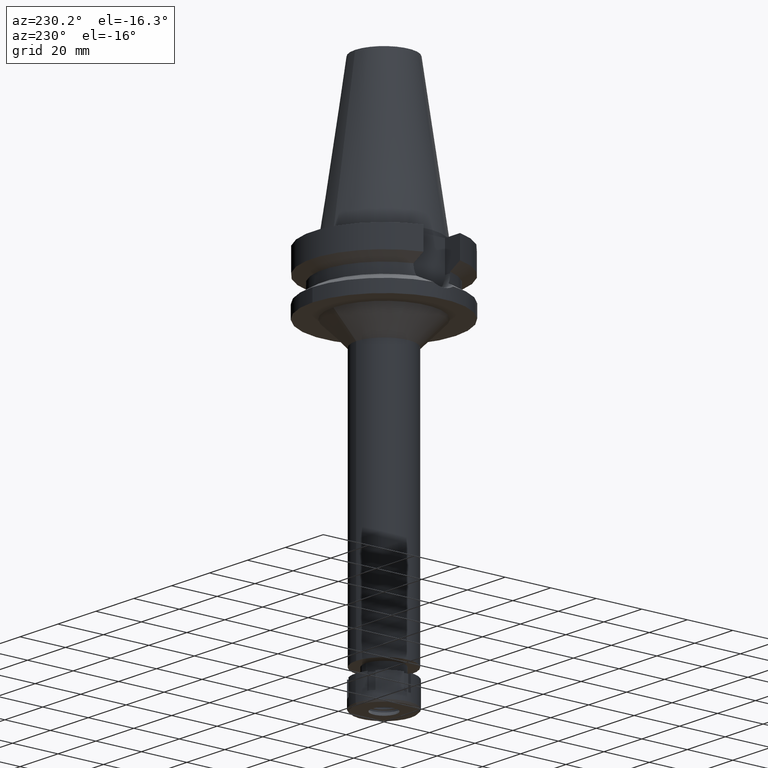
[diagram: clean part render]
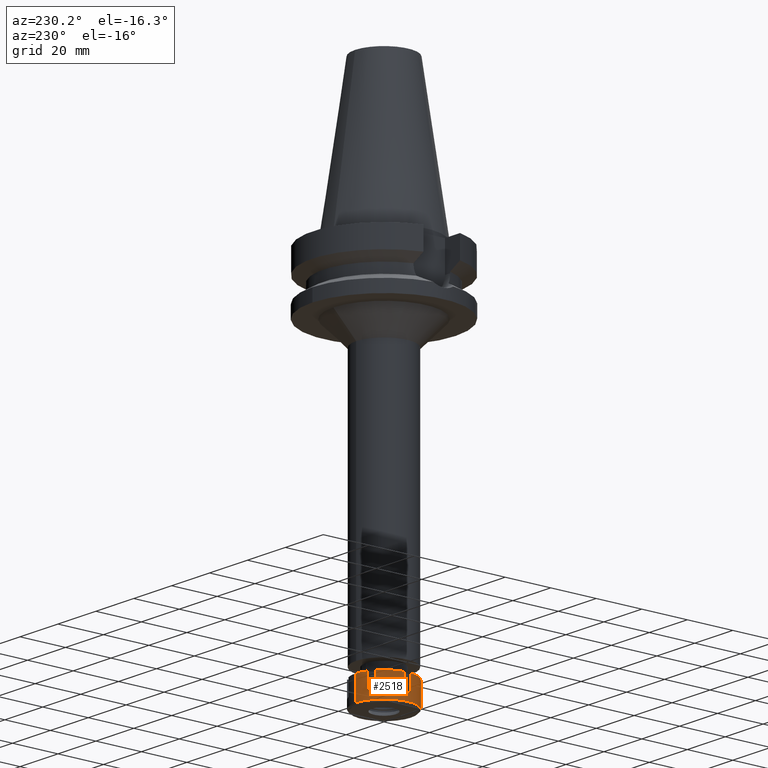
[diagram: same view with one face highlighted and labeled with its STEP entity id]
A machine part, auxiliary view. The second image highlights one B-rep face of the part: STEP entity #2518.
In plain terms, the highlighted cylindrical surface (partial cylindrical patch) has radius 12.5 mm, axis along (0, 0, -1).
Its self-contained STEP definition (entity closure, byte-faithful):
#23 = CARTESIAN_POINT ( 'NONE',  ( -12.40967364599000078, -1.500000000000000000, -7.000000000000000000 ) ) ;
#30 = VECTOR ( 'NONE', #1819, 1000.000000000000000 ) ;
#34 = FACE_OUTER_BOUND ( 'NONE', #3370, .T. ) ;
#39 = LINE ( 'NONE', #23, #516 ) ;
#66 = EDGE_CURVE ( 'NONE', #1135, #3204, #2758, .T. ) ;
#86 = DIRECTION ( 'NONE',  ( 0.0000000000000000000, -1.000000000000000000, 0.0000000000000000000 ) ) ;
#89 = CARTESIAN_POINT ( 'NONE',  ( 0.0000000000000000000, 12.50000000000000000, 0.0000000000000000000 ) ) ;
#97 = CIRCLE ( 'NONE', #3350, 12.50000000000000355 ) ;
#155 = AXIS2_PLACEMENT_3D ( 'NONE', #310, #2187, #2825 ) ;
#171 = EDGE_CURVE ( 'NONE', #2708, #272, #2819, .T. ) ;
#230 = VECTOR ( 'NONE', #3121, 1000.000000000000000 ) ;
#271 = ORIENTED_EDGE ( 'NONE', *, *, #3542, .F. ) ;
#272 = VERTEX_POINT ( 'NONE', #828 ) ;
#310 = CARTESIAN_POINT ( 'NONE',  ( 0.0000000000000000000, 0.0000000000000000000, -7.000000000000000000 ) ) ;
#313 = DIRECTION ( 'NONE',  ( 0.0000000000000000000, 0.0000000000000000000, -1.000000000000000000 ) ) ;
#511 = VECTOR ( 'NONE', #2537, 1000.000000000000000 ) ;
#513 = CARTESIAN_POINT ( 'NONE',  ( 0.0000000000000000000, 12.50000000000000000, -10.30000000000000071 ) ) ;
#516 = VECTOR ( 'NONE', #1152, 1000.000000000000000 ) ;
#527 = DIRECTION ( 'NONE',  ( 0.0000000000000000000, 0.0000000000000000000, -1.000000000000000000 ) ) ;
#550 = EDGE_CURVE ( 'NONE', #2850, #3247, #2367, .T. ) ;
#562 = CARTESIAN_POINT ( 'NONE',  ( 0.0000000000000000000, 0.0000000000000000000, 0.0000000000000000000 ) ) ;
#572 = LINE ( 'NONE', #2307, #2770 ) ;
#591 = CARTESIAN_POINT ( 'NONE',  ( -7.503874928671999456, -9.997092630101999333, 0.0000000000000000000 ) ) ;
#720 = VERTEX_POINT ( 'NONE', #3030 ) ;
#761 = CARTESIAN_POINT ( 'NONE',  ( 0.0000000000000000000, 0.0000000000000000000, 0.0000000000000000000 ) ) ;
#822 = VERTEX_POINT ( 'NONE', #2296 ) ;
#828 = CARTESIAN_POINT ( 'NONE',  ( -4.905798717319999724, -11.49709263010000093, 0.0000000000000000000 ) ) ;
#843 = EDGE_CURVE ( 'NONE', #3143, #2850, #97, .T. ) ;
#861 = ORIENTED_EDGE ( 'NONE', *, *, #2219, .T. ) ;
#885 = ORIENTED_EDGE ( 'NONE', *, *, #66, .T. ) ;
#887 = EDGE_CURVE ( 'NONE', #1853, #272, #1684, .T. ) ;
#895 = ORIENTED_EDGE ( 'NONE', *, *, #2907, .F. ) ;
#898 = DIRECTION ( 'NONE',  ( 0.0000000000000000000, 0.0000000000000000000, -1.000000000000000000 ) ) ;
#927 = EDGE_CURVE ( 'NONE', #1853, #1821, #2283, .T. ) ;
#942 = DIRECTION ( 'NONE',  ( 0.0000000000000000000, 0.0000000000000000000, -1.000000000000000000 ) ) ;
#956 = VERTEX_POINT ( 'NONE', #979 ) ;
#979 = CARTESIAN_POINT ( 'NONE',  ( -12.40967364599000078, 1.500000000000000000, 0.0000000000000000000 ) ) ;
#987 = DIRECTION ( 'NONE',  ( 0.0000000000000000000, 1.000000000000000000, 0.0000000000000000000 ) ) ;
#1018 = CARTESIAN_POINT ( 'NONE',  ( -7.503874928671999456, 9.997092630101999333, 0.0000000000000000000 ) ) ;
#1087 = CARTESIAN_POINT ( 'NONE',  ( -4.905798717318000435, 11.49709263010000093, -7.000000000000000000 ) ) ;
#1089 = LINE ( 'NONE', #591, #1398 ) ;
#1111 = AXIS2_PLACEMENT_3D ( 'NONE', #2564, #3125, #86 ) ;
#1135 = VERTEX_POINT ( 'NONE', #2450 ) ;
#1152 = DIRECTION ( 'NONE',  ( 0.0000000000000000000, 0.0000000000000000000, 1.000000000000000000 ) ) ;
#1190 = ORIENTED_EDGE ( 'NONE', *, *, #2030, .T. ) ;
#1285 = ORIENTED_EDGE ( 'NONE', *, *, #1906, .T. ) ;
#1310 = VERTEX_POINT ( 'NONE', #2291 ) ;
#1316 = LINE ( 'NONE', #2443, #1994 ) ;
#1348 = CARTESIAN_POINT ( 'NONE',  ( 0.0000000000000000000, 12.50000000000000000, 0.0000000000000000000 ) ) ;
#1385 = ORIENTED_EDGE ( 'NONE', *, *, #927, .T. ) ;
#1398 = VECTOR ( 'NONE', #313, 1000.000000000000000 ) ;
#1441 = EDGE_CURVE ( 'NONE', #822, #1821, #1089, .T. ) ;
#1464 = DIRECTION ( 'NONE',  ( -0.3924638973854109314, 0.9197674104082257385, 0.0000000000000000000 ) ) ;
#1469 = DIRECTION ( 'NONE',  ( -0.6003099942937818456, -0.7997674104081758939, 0.0000000000000000000 ) ) ;
#1499 = AXIS2_PLACEMENT_3D ( 'NONE', #761, #1908, #3317 ) ;
#1509 = CARTESIAN_POINT ( 'NONE',  ( -4.905798717318000435, 11.49709263010000093, 0.0000000000000000000 ) ) ;
#1645 = CARTESIAN_POINT ( 'NONE',  ( 0.0000000000000000000, -12.50000000000000000, -10.30000000000000071 ) ) ;
#1661 = ORIENTED_EDGE ( 'NONE', *, *, #1441, .F. ) ;
#1668 = CARTESIAN_POINT ( 'NONE',  ( 0.0000000000000000000, 0.0000000000000000000, -7.000000000000000000 ) ) ;
#1670 = DIRECTION ( 'NONE',  ( 0.0000000000000000000, -1.000000000000000000, 0.0000000000000000000 ) ) ;
#1684 = LINE ( 'NONE', #2811, #511 ) ;
#1726 = EDGE_CURVE ( 'NONE', #1135, #3164, #1316, .T. ) ;
#1758 = AXIS2_PLACEMENT_3D ( 'NONE', #1855, #3514, #987 ) ;
#1819 = DIRECTION ( 'NONE',  ( 0.0000000000000000000, 0.0000000000000000000, -1.000000000000000000 ) ) ;
#1821 = VERTEX_POINT ( 'NONE', #3384 ) ;
#1853 = VERTEX_POINT ( 'NONE', #2540 ) ;
#1855 = CARTESIAN_POINT ( 'NONE',  ( 0.0000000000000000000, 0.0000000000000000000, -10.30000000000000071 ) ) ;
#1888 = EDGE_CURVE ( 'NONE', #1310, #2945, #39, .T. ) ;
#1906 = EDGE_CURVE ( 'NONE', #822, #2945, #2702, .T. ) ;
#1908 = DIRECTION ( 'NONE',  ( 0.0000000000000000000, 0.0000000000000000000, -1.000000000000000000 ) ) ;
#1994 = VECTOR ( 'NONE', #3296, 1000.000000000000000 ) ;
#2027 = CARTESIAN_POINT ( 'NONE',  ( -12.40967364599000078, -1.500000000000000000, 0.0000000000000000000 ) ) ;
#2030 = EDGE_CURVE ( 'NONE', #3247, #2869, #2232, .T. ) ;
#2081 = ORIENTED_EDGE ( 'NONE', *, *, #887, .F. ) ;
#2187 = DIRECTION ( 'NONE',  ( 0.0000000000000000000, 0.0000000000000000000, -1.000000000000000000 ) ) ;
#2219 = EDGE_CURVE ( 'NONE', #1310, #720, #3285, .T. ) ;
#2231 = AXIS2_PLACEMENT_3D ( 'NONE', #3295, #2442, #1670 ) ;
#2232 = CIRCLE ( 'NONE', #1758, 12.50000000000000000 ) ;
#2280 = DIRECTION ( 'NONE',  ( 0.0000000000000000000, 0.0000000000000000000, -1.000000000000000000 ) ) ;
#2283 = CIRCLE ( 'NONE', #2399, 12.49999999999999822 ) ;
#2291 = CARTESIAN_POINT ( 'NONE',  ( -12.40967364599000078, -1.500000000000000000, -7.000000000000000000 ) ) ;
#2296 = CARTESIAN_POINT ( 'NONE',  ( -7.503874928671999456, -9.997092630101999333, 0.0000000000000000000 ) ) ;
#2301 = ORIENTED_EDGE ( 'NONE', *, *, #1888, .F. ) ;
#2307 = CARTESIAN_POINT ( 'NONE',  ( 0.0000000000000000000, -12.50000000000000000, 0.0000000000000000000 ) ) ;
#2367 = LINE ( 'NONE', #89, #30 ) ;
#2399 = AXIS2_PLACEMENT_3D ( 'NONE', #2831, #942, #3172 ) ;
#2441 = VECTOR ( 'NONE', #3308, 1000.000000000000000 ) ;
#2442 = DIRECTION ( 'NONE',  ( 0.0000000000000000000, 0.0000000000000000000, -1.000000000000000000 ) ) ;
#2443 = CARTESIAN_POINT ( 'NONE',  ( -7.503874928671999456, 9.997092630101999333, -7.000000000000000000 ) ) ;
#2450 = CARTESIAN_POINT ( 'NONE',  ( -7.503874928671999456, 9.997092630101999333, -7.000000000000000000 ) ) ;
#2460 = AXIS2_PLACEMENT_3D ( 'NONE', #562, #2280, #1469 ) ;
#2480 = DIRECTION ( 'NONE',  ( -0.9927738916792689938, -0.1199999999999962208, 0.0000000000000000000 ) ) ;
#2501 = CIRCLE ( 'NONE', #1499, 12.50000000000000000 ) ;
#2517 = LINE ( 'NONE', #2812, #2441 ) ;
#2518 = ADVANCED_FACE ( 'NONE', ( #34 ), #2844, .T. ) ;
#2537 = DIRECTION ( 'NONE',  ( 0.0000000000000000000, 0.0000000000000000000, 1.000000000000000000 ) ) ;
#2540 = CARTESIAN_POINT ( 'NONE',  ( -4.905798717319999724, -11.49709263010000093, -7.000000000000000000 ) ) ;
#2541 = ORIENTED_EDGE ( 'NONE', *, *, #2964, .F. ) ;
#2552 = CARTESIAN_POINT ( 'NONE',  ( 0.0000000000000000000, 0.0000000000000000000, 0.0000000000000000000 ) ) ;
#2564 = CARTESIAN_POINT ( 'NONE',  ( 0.0000000000000000000, 0.0000000000000000000, 0.0000000000000000000 ) ) ;
#2607 = CARTESIAN_POINT ( 'NONE',  ( -4.905798717318000435, 11.49709263010000093, 0.0000000000000000000 ) ) ;
#2641 = CARTESIAN_POINT ( 'NONE',  ( 0.0000000000000000000, -12.50000000000000000, 0.0000000000000000000 ) ) ;
#2653 = ORIENTED_EDGE ( 'NONE', *, *, #843, .T. ) ;
#2702 = CIRCLE ( 'NONE', #2460, 12.50000000000000178 ) ;
#2704 = ORIENTED_EDGE ( 'NONE', *, *, #550, .T. ) ;
#2708 = VERTEX_POINT ( 'NONE', #2641 ) ;
#2758 = CIRCLE ( 'NONE', #155, 12.50000000000000178 ) ;
#2770 = VECTOR ( 'NONE', #898, 1000.000000000000000 ) ;
#2811 = CARTESIAN_POINT ( 'NONE',  ( -4.905798717319999724, -11.49709263010000093, -7.000000000000000000 ) ) ;
#2812 = CARTESIAN_POINT ( 'NONE',  ( -12.40967364599000078, 1.500000000000000000, 0.0000000000000000000 ) ) ;
#2819 = CIRCLE ( 'NONE', #2231, 12.50000000000000000 ) ;
#2823 = ORIENTED_EDGE ( 'NONE', *, *, #171, .T. ) ;
#2825 = DIRECTION ( 'NONE',  ( -0.6003099942937818456, 0.7997674104081758939, 0.0000000000000000000 ) ) ;
#2831 = CARTESIAN_POINT ( 'NONE',  ( 0.0000000000000000000, 0.0000000000000000000, -7.000000000000000000 ) ) ;
#2844 = CYLINDRICAL_SURFACE ( 'NONE', #1111, 12.50000000000000000 ) ;
#2850 = VERTEX_POINT ( 'NONE', #1348 ) ;
#2869 = VERTEX_POINT ( 'NONE', #1645 ) ;
#2890 = ORIENTED_EDGE ( 'NONE', *, *, #3409, .T. ) ;
#2907 = EDGE_CURVE ( 'NONE', #2708, #2869, #572, .T. ) ;
#2945 = VERTEX_POINT ( 'NONE', #2027 ) ;
#2964 = EDGE_CURVE ( 'NONE', #3143, #3204, #3170, .T. ) ;
#3030 = CARTESIAN_POINT ( 'NONE',  ( -12.40967364599000078, 1.500000000000000000, -7.000000000000000000 ) ) ;
#3121 = DIRECTION ( 'NONE',  ( 0.0000000000000000000, 0.0000000000000000000, -1.000000000000000000 ) ) ;
#3125 = DIRECTION ( 'NONE',  ( 0.0000000000000000000, 0.0000000000000000000, -1.000000000000000000 ) ) ;
#3136 = DIRECTION ( 'NONE',  ( 0.0000000000000000000, 0.0000000000000000000, -1.000000000000000000 ) ) ;
#3143 = VERTEX_POINT ( 'NONE', #1509 ) ;
#3164 = VERTEX_POINT ( 'NONE', #1018 ) ;
#3170 = LINE ( 'NONE', #2607, #230 ) ;
#3172 = DIRECTION ( 'NONE',  ( -0.3924638973856165447, -0.9197674104081380309, 0.0000000000000000000 ) ) ;
#3204 = VERTEX_POINT ( 'NONE', #1087 ) ;
#3247 = VERTEX_POINT ( 'NONE', #513 ) ;
#3285 = CIRCLE ( 'NONE', #3640, 12.50000000000000000 ) ;
#3295 = CARTESIAN_POINT ( 'NONE',  ( 0.0000000000000000000, 0.0000000000000000000, 0.0000000000000000000 ) ) ;
#3296 = DIRECTION ( 'NONE',  ( 0.0000000000000000000, 0.0000000000000000000, 1.000000000000000000 ) ) ;
#3306 = ORIENTED_EDGE ( 'NONE', *, *, #1726, .F. ) ;
#3308 = DIRECTION ( 'NONE',  ( 0.0000000000000000000, 0.0000000000000000000, -1.000000000000000000 ) ) ;
#3317 = DIRECTION ( 'NONE',  ( -0.9927738916792689938, 0.1199999999999962208, 0.0000000000000000000 ) ) ;
#3350 = AXIS2_PLACEMENT_3D ( 'NONE', #2552, #3136, #1464 ) ;
#3370 = EDGE_LOOP ( 'NONE', ( #2541, #2653, #2704, #1190, #895, #2823, #2081, #1385, #1661, #1285, #2301, #861, #271, #2890, #3306, #885 ) ) ;
#3384 = CARTESIAN_POINT ( 'NONE',  ( -7.503874928671999456, -9.997092630101999333, -7.000000000000000000 ) ) ;
#3409 = EDGE_CURVE ( 'NONE', #956, #3164, #2501, .T. ) ;
#3514 = DIRECTION ( 'NONE',  ( 0.0000000000000000000, 0.0000000000000000000, 1.000000000000000000 ) ) ;
#3542 = EDGE_CURVE ( 'NONE', #956, #720, #2517, .T. ) ;
#3640 = AXIS2_PLACEMENT_3D ( 'NONE', #1668, #527, #2480 ) ;